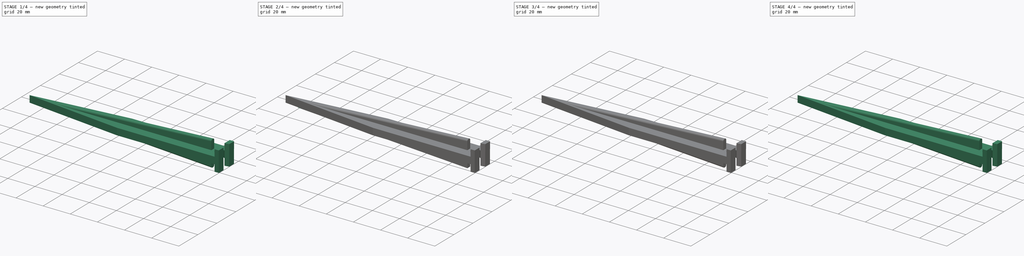
[diagram: build sequence overview — one tinted view per stage of 4, left to right]
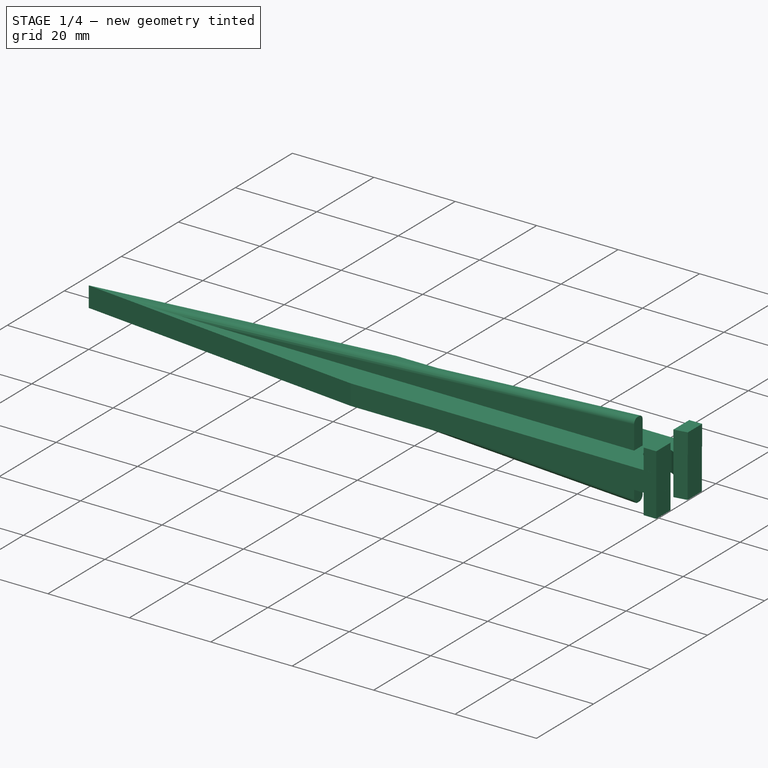
[diagram: stage 1 of 4 — iso view after this stage's code; geometry added in this stage tinted green]
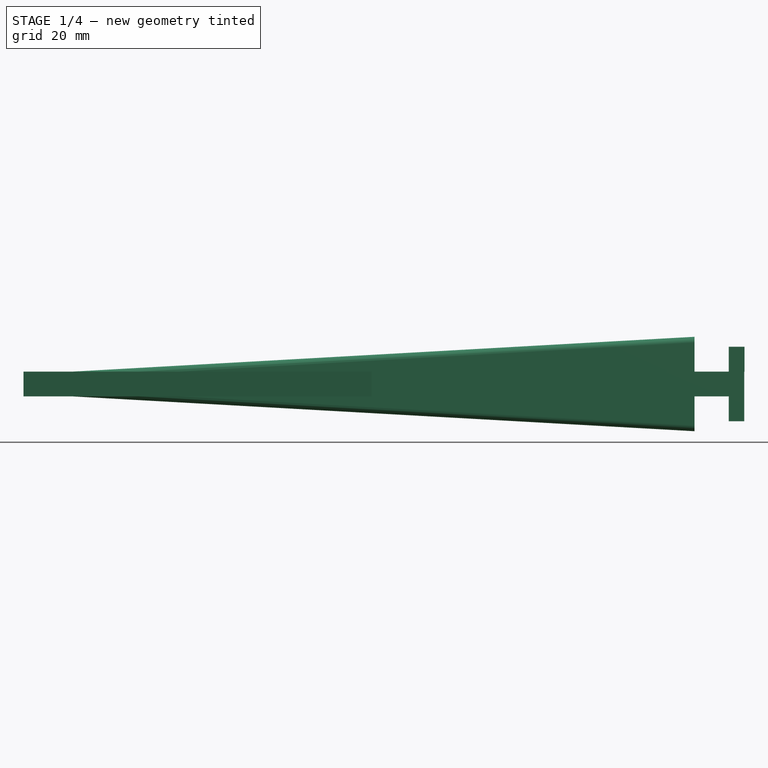
[diagram: stage 1 of 4 — front view after this stage's code; geometry added in this stage tinted green]
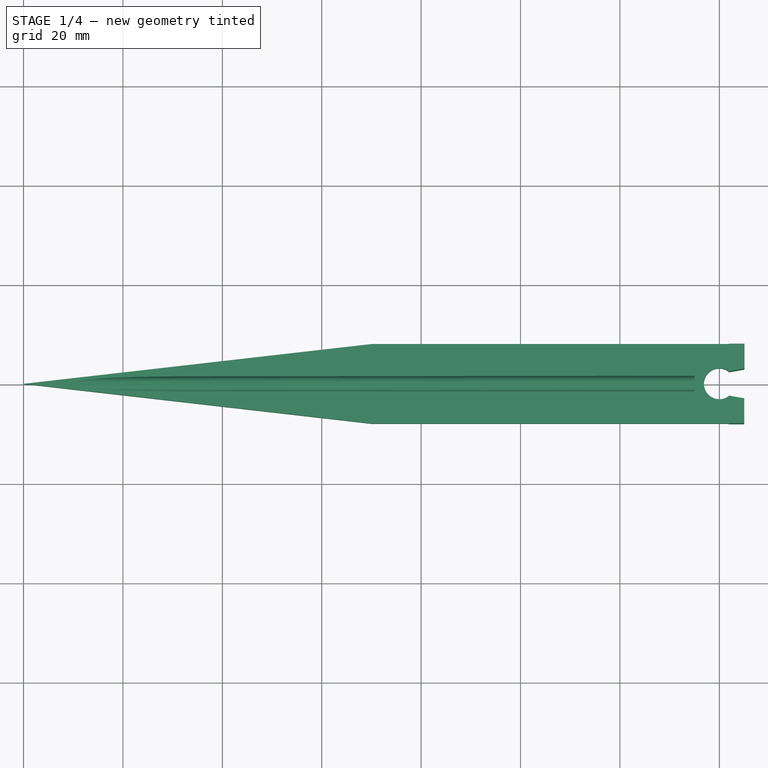
[diagram: stage 1 of 4 — top view after this stage's code; geometry added in this stage tinted green]
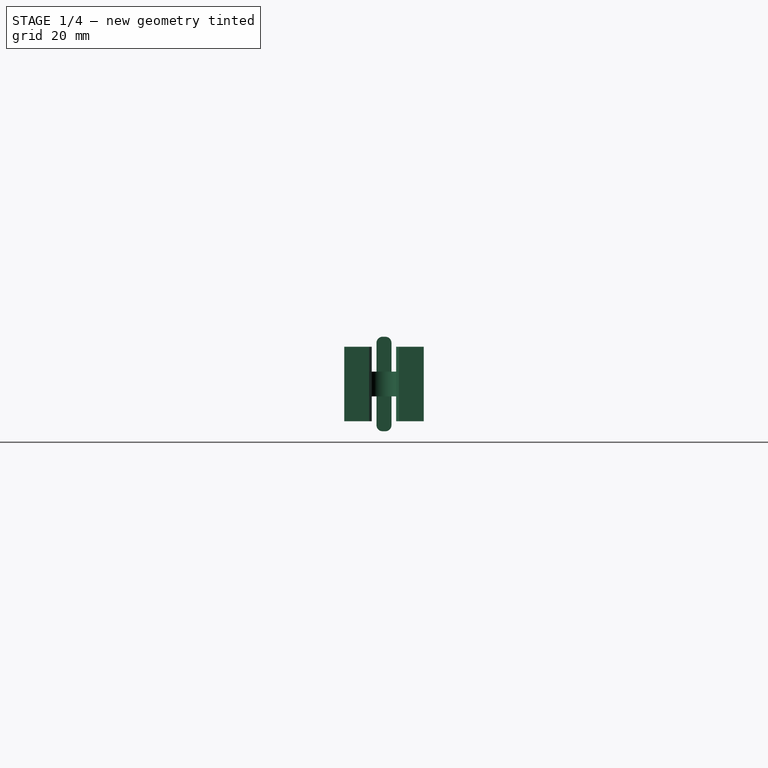
[diagram: stage 1 of 4 — right view after this stage's code; geometry added in this stage tinted green]
FCSTD DOCUMENT  (FreeCAD 1.0R38641 +468 (Git))
Label: holder
License: All rights reserved
LicenseURL: https://en.wikipedia.org/wiki/All_rights_reserved
objects: Sketcher::SketchObject×5, PartDesign::Pad×5, PartDesign::Body×5, PartDesign::Boolean×3, PartDesign::Fillet×2
note: 42 computed .brp shape members not serialized (recipe doc carries the construction recipe); baked Part::Feature solids carry a one-line shape summary decoded from their .brp

FEATURE [PartDesign::Body] Body006
  AllowCompound = false
  Group = -> [Boolean001]
  Origin = -> Origin006
  Tip = -> Boolean001
FEATURE [Sketcher::SketchObject] Sketch002
  ArcFitTolerance = 1e-06
  AttachmentSupport = -> [Boolean]
  FullyConstrained = true
  MakeInternals = false
  MapMode = 5
  Placement = pos=(0,0,0) rot=(1,0,0;3.14159rad)
  sketch-geometry (8):
    g0: LineSegment StartX=5.00214 StartY=7.99699 StartZ=0 EndX=5.00214 EndY=2.99699 EndZ=0
    g1: LineSegment StartX=5.00214 StartY=2.99699 StartZ=0 EndX=1.9 EndY=2.45 EndZ=0
    g2: LineSegment StartX=1.9 StartY=2.45 StartZ=0 EndX=1.9 EndY=7.99699 EndZ=0
    g3: LineSegment StartX=1.9 StartY=7.99699 StartZ=0 EndX=5.00214 EndY=7.99699 EndZ=0
    g4: LineSegment StartX=1.9 StartY=-2.45 StartZ=0 EndX=1.9 EndY=-7.99819 EndZ=0
    g5: LineSegment StartX=1.9 StartY=-7.99819 StartZ=0 EndX=5 EndY=-7.99819 EndZ=0
    g6: LineSegment StartX=5 StartY=-7.99819 StartZ=0 EndX=5.00193 EndY=-2.99819 EndZ=0
    g7: LineSegment StartX=5.00193 StartY=-2.99819 StartZ=0 EndX=1.9 EndY=-2.45 EndZ=0
  constraints (24):
    c: Vertical(g0)
    c: Coincident(g1,g0)
    c: Coincident(g2,g1)
    c: Vertical(g2)
    c: Coincident(g3,g2)
    c: Coincident(g3,g0)
    c: Horizontal(g3)
    c: Vertical(g4)
    c: Coincident(g5,g4)
    c: Horizontal(g5)
    c: Coincident(g6,g5)
    c: Coincident(g7,g6)
    c: Coincident(g7,g4)
    c: Angle(g0,g1) = 1.74533
    c: DistanceY(g0,g0) = 5
    c: Angle(g7,g6) = 1.74533
    c: DistanceY(g5,g6) = 5
    c: Distance(g4,g6) = 3.15
    c: DistanceX(g-1,g4) = 1.9
    c: DistanceY(g4,g-1) = 2.45
    c: DistanceX(g5,g5) = 3.1
    c: DistanceX(g-1,g1) = 1.9
    c: Distance(g1,g0) = 3.15
    c: DistanceY(g-1,g1) = 2.45
FEATURE [PartDesign::Pad] Pad003
  Direction = (0,0,-1)
  Length = 5
  Length2 = 10
  Profile = -> Sketch002
  ReferenceAxis = -> Sketch002 [N_Axis]
  Refine = true
  Suppressed = false
  Type = 0
FEATURE [Sketcher::SketchObject] Sketch003
  ArcFitTolerance = 1e-06
  AttachmentSupport = -> [Pad003]
  FullyConstrained = true
  MakeInternals = false
  MapMode = 5
  Placement = pos=(0,0,5) rot=(0,0,1;0rad)
  sketch-geometry (8):
    g0: LineSegment StartX=5.05 StartY=8.00543 StartZ=0 EndX=1.9 EndY=8.00543 EndZ=0
    g1: LineSegment StartX=1.9 StartY=8.00543 StartZ=0 EndX=1.9 EndY=2.45 EndZ=0
    g2: LineSegment StartX=1.9 StartY=2.45 StartZ=0 EndX=5.05 EndY=3.00543 EndZ=0
    g3: LineSegment StartX=5.05 StartY=3.00543 StartZ=0 EndX=5.05 EndY=8.00543 EndZ=0
    g4: LineSegment StartX=5.00214 StartY=-2.99699 StartZ=0 EndX=5.00214 EndY=-7.99699 EndZ=0
    g5: LineSegment StartX=5.00214 StartY=-7.99699 StartZ=0 EndX=1.9 EndY=-7.99699 EndZ=0
    g6: LineSegment StartX=1.9 StartY=-7.99699 StartZ=0 EndX=1.9 EndY=-2.45 EndZ=0
    g7: LineSegment StartX=1.9 StartY=-2.45 StartZ=0 EndX=5.00214 EndY=-2.99699 EndZ=0
  constraints (24):
    c: Horizontal(g0)
    c: Coincident(g1,g0)
    c: Vertical(g1)
    c: Coincident(g2,g1)
    c: Coincident(g3,g2)
    c: Coincident(g3,g0)
    c: Vertical(g3)
    c: Vertical(g4)
    c: Coincident(g5,g4)
    c: Horizontal(g5)
    c: Coincident(g6,g5)
    c: Vertical(g6)
    c: Coincident(g7,g6)
    c: Coincident(g7,g4)
    c: DistanceX(g1,g2) = 3.15
    c: Distance(g6,g4) = 3.15
    c: DistanceY(g2,g0) = 5
    c: DistanceY(g4,g4) = 5
    c: Angle(g7,g4) = 1.74533
    c: Angle(g3,g2) = 1.74533
    c: DistanceY(g-1,g1) = 2.45
    c: DistanceY(g6,g-1) = 2.45
    c: DistanceX(g-1,g1) = 1.9
    c: DistanceX(g-1,g6) = 1.9
FEATURE [PartDesign::Pad] Pad004
  BaseFeature = -> Pad003
  Direction = (0,0,1)
  Length = 5
  Length2 = 10
  Profile = -> Sketch003
  ReferenceAxis = -> Sketch003 [N_Axis]
  Refine = true
  Suppressed = false
  Type = 0
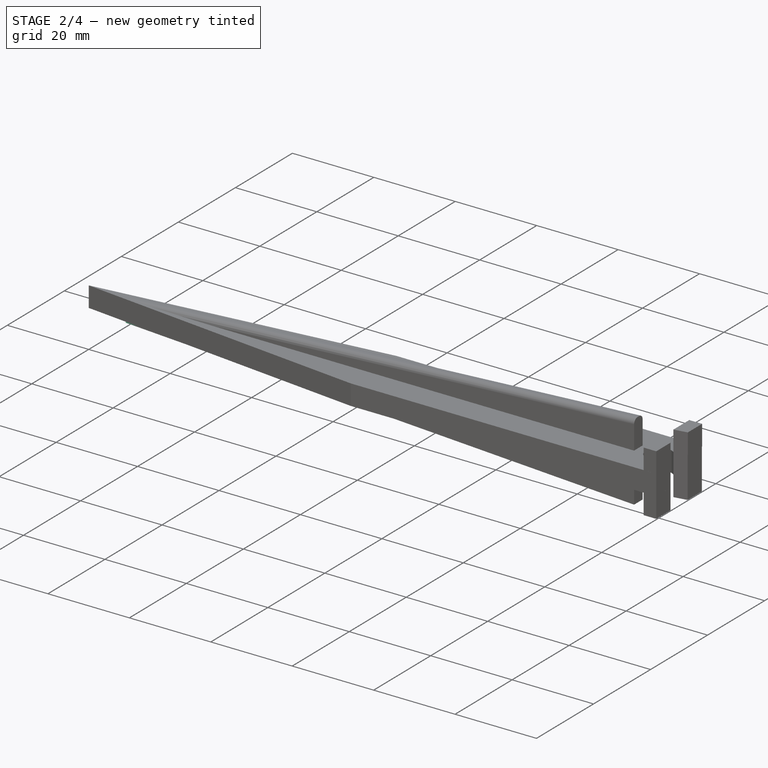
[diagram: stage 2 of 4 — iso view after this stage's code; geometry added in this stage tinted green]
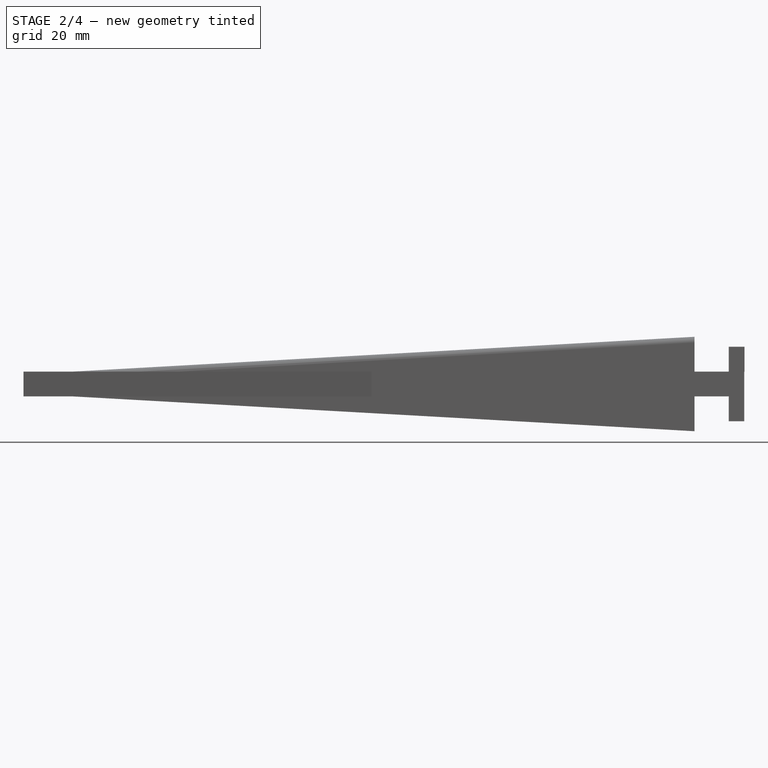
[diagram: stage 2 of 4 — front view after this stage's code; geometry added in this stage tinted green]
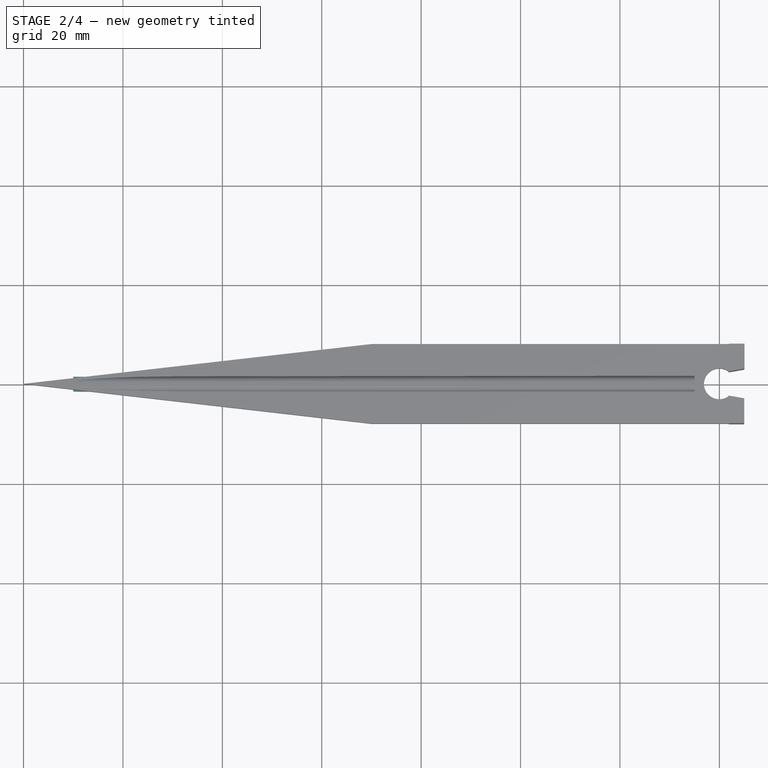
[diagram: stage 2 of 4 — top view after this stage's code; geometry added in this stage tinted green]
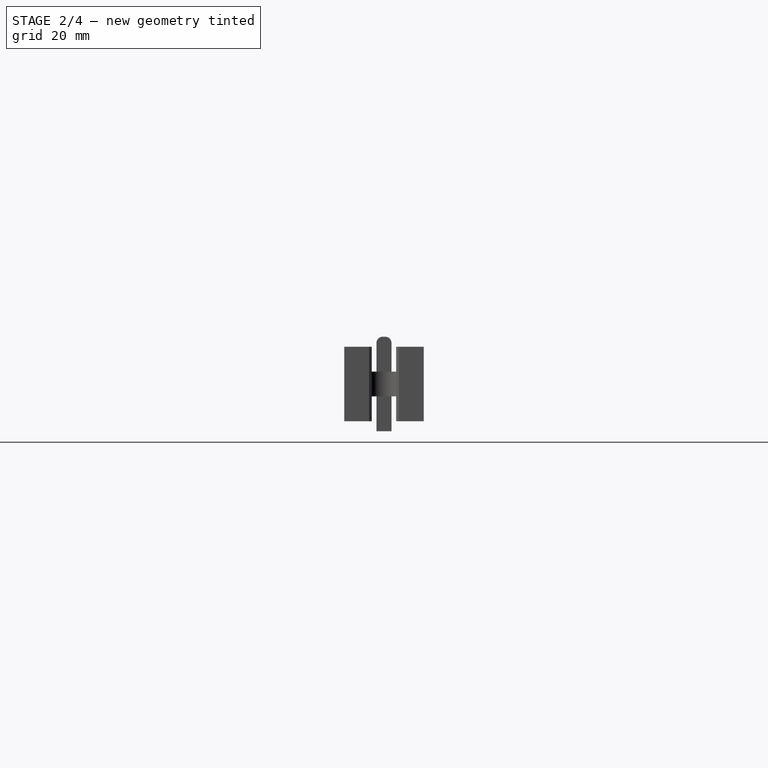
[diagram: stage 2 of 4 — right view after this stage's code; geometry added in this stage tinted green]
FEATURE [PartDesign::Body] Body
  AllowCompound = false
  Group = -> [Sketch,Pad]
  Origin = -> Origin
  Tip = -> Pad
FEATURE [Sketcher::SketchObject] Sketch001
  ArcFitTolerance = 0
  AttachmentSupport = -> [XZ_Plane001]
  FullyConstrained = true
  MakeInternals = false
  MapMode = 5
  Placement = pos=(0,0,0) rot=(1,0,0;1.5708rad)
  sketch-geometry (3):
    g0: LineSegment StartX=-130 StartY=5 StartZ=0 EndX=-5 EndY=5 EndZ=0
    g1: LineSegment StartX=-5 StartY=12 StartZ=0 EndX=-5 EndY=5 EndZ=0
    g2: LineSegment StartX=-5 StartY=12 StartZ=0 EndX=-130 EndY=5 EndZ=0
  constraints (9):
    c: Coincident(g1,g0)
    c: Coincident(g2,g1)
    c: Coincident(g0,g2)
    c: Horizontal(g0)
    c: DistanceY(g-1,g0) = 5
    c: DistanceX(g0,g-1) = 5
    c: Vertical(g1)
    c: DistanceY(g1,g1) = 7
    c: DistanceX(g0,g-1) = 130
FEATURE [PartDesign::Pad] Pad001
  Direction = (0,-1,2e-16)
  Length = 3
  Length2 = 10
  Midplane = true
  Placement = pos=(0,0,0) rot=(1,0,0;1.5708rad)
  Profile = -> Sketch001
  ReferenceAxis = -> Sketch001 [N_Axis]
  Suppressed = false
  Type = 0
FEATURE [Sketcher::SketchObject] MirroredSketch
  ArcFitTolerance = 0
  FullyConstrained = true
  MakeInternals = false
  Placement = pos=(0,0,0) rot=(1,0,0;1.5708rad)
  sketch-geometry (3):
    g0: LineSegment StartX=-130 StartY=0 StartZ=0 EndX=-5 EndY=0 EndZ=0
    g1: LineSegment StartX=-5 StartY=-7 StartZ=0 EndX=-5 EndY=0 EndZ=0
    g2: LineSegment StartX=-5 StartY=-7 StartZ=0 EndX=-130 EndY=0 EndZ=0
  constraints (9):
    c: Coincident(g1,g0)
    c: Coincident(g2,g1)
    c: Coincident(g0,g2)
    c: Horizontal(g0)
    c: Vertical(g1)
    c: DistanceX(g0,g-1) = 5
    c: PointOnObject(g0,g-1)
    c: DistanceY(g1,g1) = 7
    c: DistanceX(g0,g-1) = 130
FEATURE [PartDesign::Pad] Pad002
  Direction = (0,-1,2e-16)
  Length = 3
  Length2 = 10
  Midplane = true
  Placement = pos=(0,0,0) rot=(1,0,0;1.5708rad)
  Profile = -> MirroredSketch
  ReferenceAxis = -> MirroredSketch [N_Axis]
  Suppressed = false
  Type = 0
FEATURE [PartDesign::Body] Body002
  AllowCompound = false
  Group = -> [MirroredSketch,Pad002,Fillet]
  Origin = -> Origin002
  Tip = -> Fillet
FEATURE [PartDesign::Fillet] Fillet001
  Base = -> Pad001 [Edge9,Edge8]
  BaseFeature = -> Pad001
  Placement = pos=(0,0,0) rot=(1,0,0;1.5708rad)
  Radius = 1.2
  SupportTransform = false
  Suppressed = false
  UseAllEdges = false
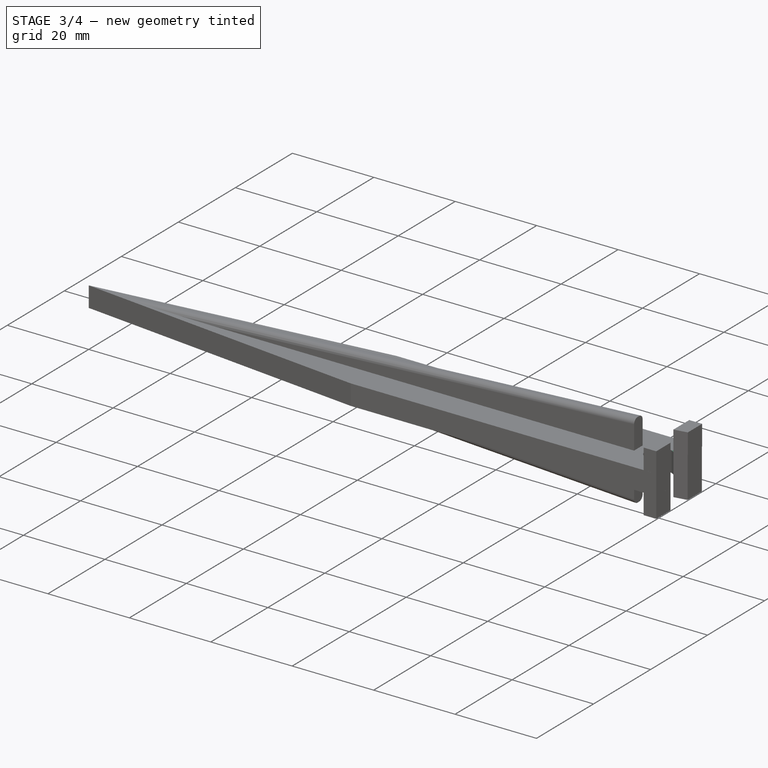
[diagram: stage 3 of 4 — iso view after this stage's code; geometry added in this stage tinted green]
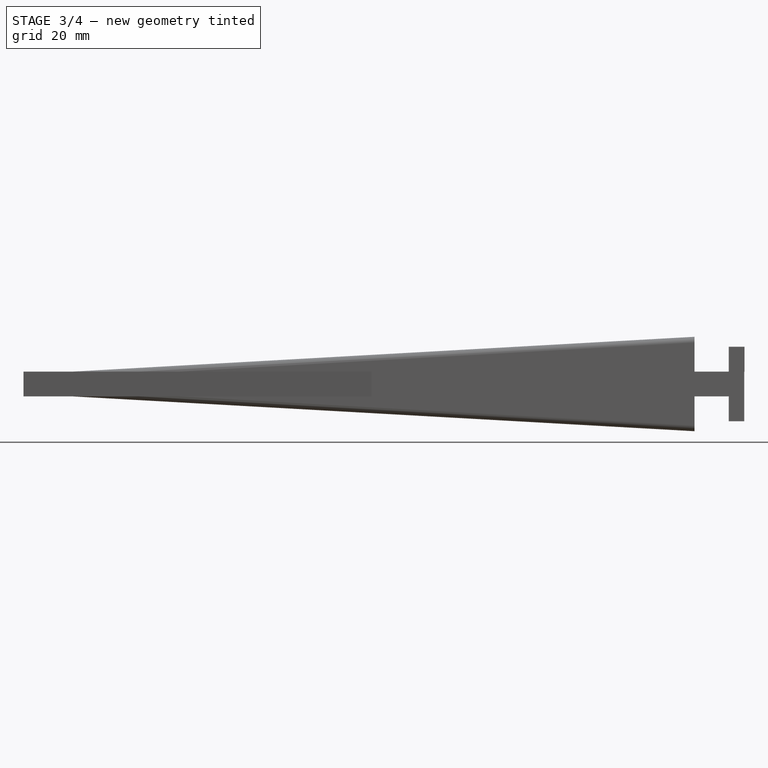
[diagram: stage 3 of 4 — front view after this stage's code; geometry added in this stage tinted green]
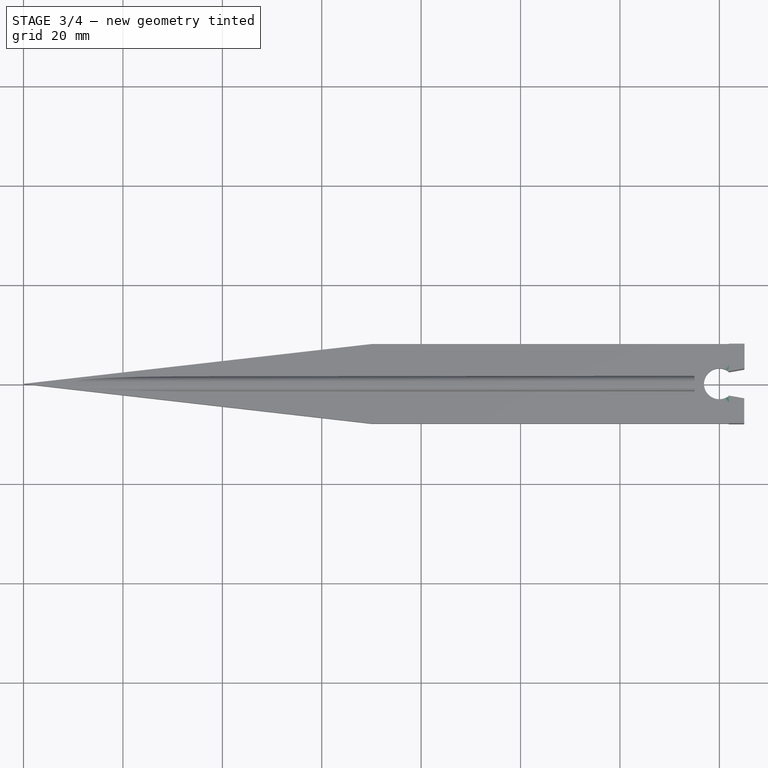
[diagram: stage 3 of 4 — top view after this stage's code; geometry added in this stage tinted green]
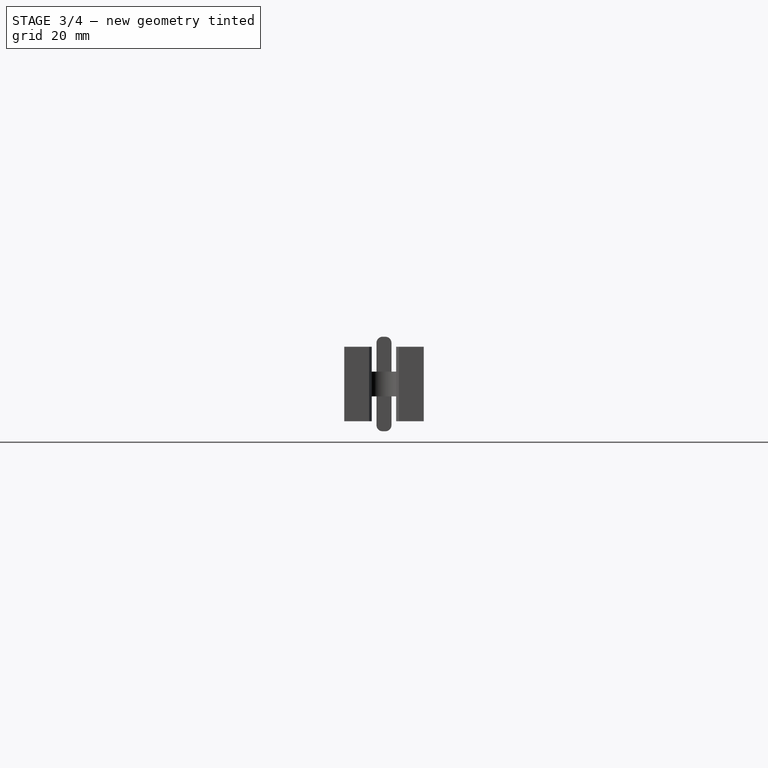
[diagram: stage 3 of 4 — right view after this stage's code; geometry added in this stage tinted green]
FEATURE [Sketcher::SketchObject] Sketch
  ArcFitTolerance = 0
  AttachmentSupport = -> [XY_Plane]
  FullyConstrained = true
  MakeInternals = false
  MapMode = 5
  sketch-geometry (11):
    g0: LineSegment StartX=0 StartY=-8 StartZ=0 EndX=-70 EndY=-8 EndZ=0
    g1: LineSegment StartX=-70 StartY=-8 StartZ=0 EndX=-140 EndY=0 EndZ=0
    g2: LineSegment StartX=-140 StartY=0 StartZ=0 EndX=-70 EndY=8 EndZ=0
    g3: LineSegment StartX=-70 StartY=8 StartZ=0 EndX=0 EndY=8 EndZ=0
    g4: ArcOfCircle CenterX=0 CenterY=0 CenterZ=0 NormalX=0 NormalY=0 NormalZ=1 AngleXU=0 Radius=3.1 StartAngle=0.912739 EndAngle=5.37045
    g5: LineSegment StartX=0 StartY=8 StartZ=0 EndX=5 EndY=8 EndZ=0
    g6: LineSegment StartX=5 StartY=8 StartZ=0 EndX=5 EndY=3 EndZ=0
    g7: LineSegment StartX=5 StartY=3 StartZ=0 EndX=1.8959 EndY=2.45266 EndZ=0
    g8: LineSegment StartX=1.8959 StartY=-2.45266 StartZ=0 EndX=5 EndY=-3 EndZ=0
    g9: LineSegment StartX=5 StartY=-3 StartZ=0 EndX=5 EndY=-8 EndZ=0
    g10: LineSegment StartX=5 StartY=-8 StartZ=0 EndX=0 EndY=-8 EndZ=0
  constraints (33):
    c: PointOnObject(g2,g-1)
    c: PointOnObject(g3,g-2)
    c: PointOnObject(g0,g-2)
    c: DistanceY(g-1,g3) = 8
    c: Coincident(g2,g1)
    c: Coincident(g0,g1)
    c: Horizontal(g0)
    c: Coincident(g2,g3)
    c: Horizontal(g3)
    c: Coincident(g4,g-1)
    c: Radius(g4) = 3.1
    c: Equal(g3,g0)
    c: Coincident(g5,g3)
    c: Horizontal(g5)
    c: Coincident(g6,g5)
    c: Vertical(g6)
    c: Coincident(g7,g6)
    c: Coincident(g9,g8)
    c: Coincident(g10,g9)
    c: Coincident(g10,g0)
    c: Horizontal(g10)
    c: DistanceX(g5,g5) = 5
    c: DistanceY(g6,g6) = 5
    c: Vertical(g9)
    c: DistanceY(g9,g9) = 5
    c: Coincident(g4,g8)
    c: Coincident(g4,g7)
    c: DistanceX(g10,g10) = 5
    c: DistanceX(g3,g3) = 70
    c: DistanceX(g1,g2) = 70
    c: DistanceY(g9,g-1) = 8
    c: Angle(g6,g7) = 1.74533
    c: Angle(g8,g9) = 1.74533
FEATURE [PartDesign::Pad] Pad
  AlongSketchNormal = false
  Direction = (0,0,1)
  Length = 5
  Length2 = 1
  Offset = 1
  Profile = -> Sketch
  ReferenceAxis = -> Sketch [N_Axis]
  Suppressed = false
  Type = 0
FEATURE [PartDesign::Fillet] Fillet
  Base = -> Pad002 [Edge8,Edge9]
  BaseFeature = -> Pad002
  Placement = pos=(0,0,0) rot=(1,0,0;1.5708rad)
  Radius = 1.2
  SupportTransform = false
  Suppressed = false
  UseAllEdges = false
FEATURE [PartDesign::Boolean] Boolean
  BaseFeature = -> Fillet001
  Group = -> [Body,Body002]
  Suppressed = false
  Type = 0
  UsePlacement = false
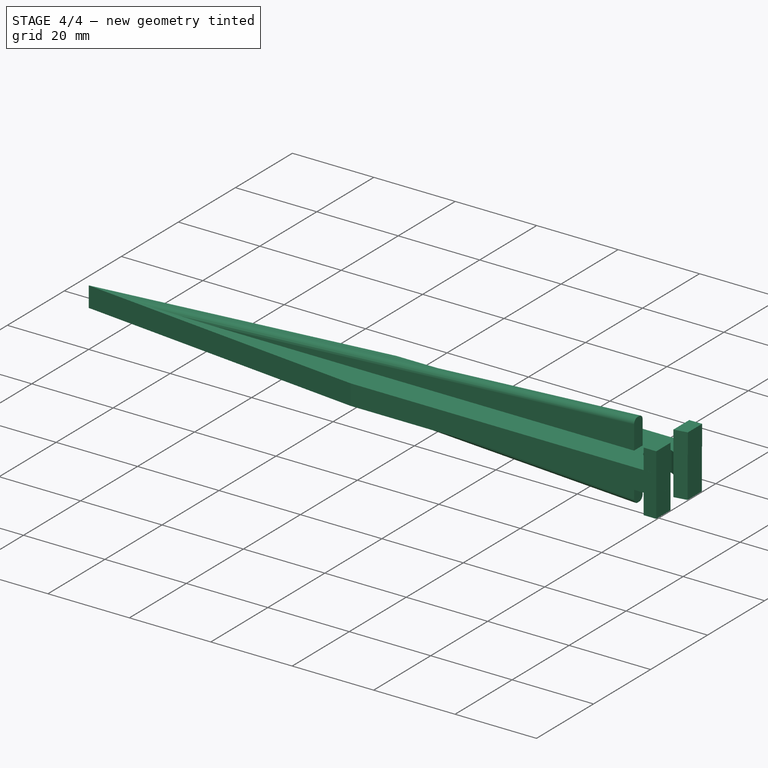
[diagram: stage 4 of 4 — iso view after this stage's code; geometry added in this stage tinted green]
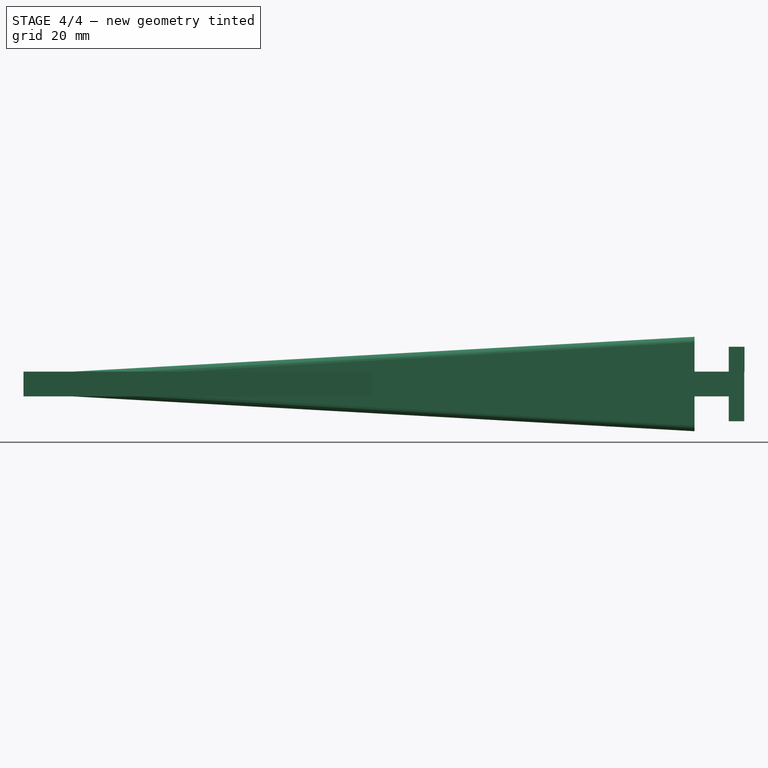
[diagram: stage 4 of 4 — front view after this stage's code; geometry added in this stage tinted green]
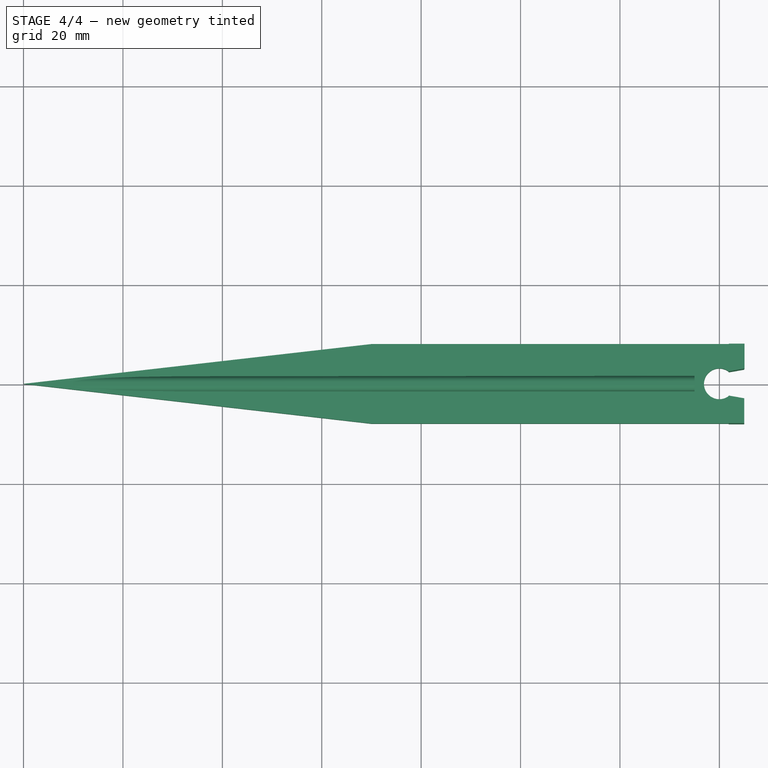
[diagram: stage 4 of 4 — top view after this stage's code; geometry added in this stage tinted green]
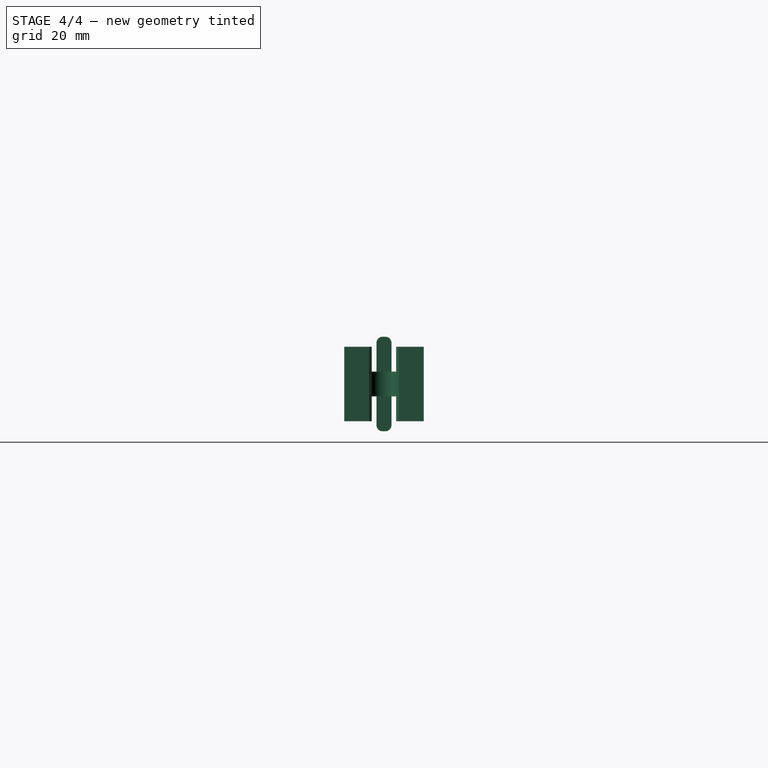
[diagram: stage 4 of 4 — right view after this stage's code; geometry added in this stage tinted green]
FEATURE [PartDesign::Body] Body001
  AllowCompound = false
  Group = -> [Sketch001,Pad001,Fillet001,Boolean]
  Origin = -> Origin001
  Tip = -> Boolean
FEATURE [PartDesign::Boolean] Boolean001
  Group = -> [Body001]
  Suppressed = false
  Type = 0
  UsePlacement = false
FEATURE [PartDesign::Boolean] Boolean002
  BaseFeature = -> Pad004
  Group = -> [Body006]
  Refine = true
  Suppressed = false
  Type = 0
  UsePlacement = true
FEATURE [PartDesign::Body] Body007
  AllowCompound = false
  Group = -> [Sketch002,Pad003,Sketch003,Pad004,Boolean002]
  Origin = -> Origin007
  Tip = -> Boolean002
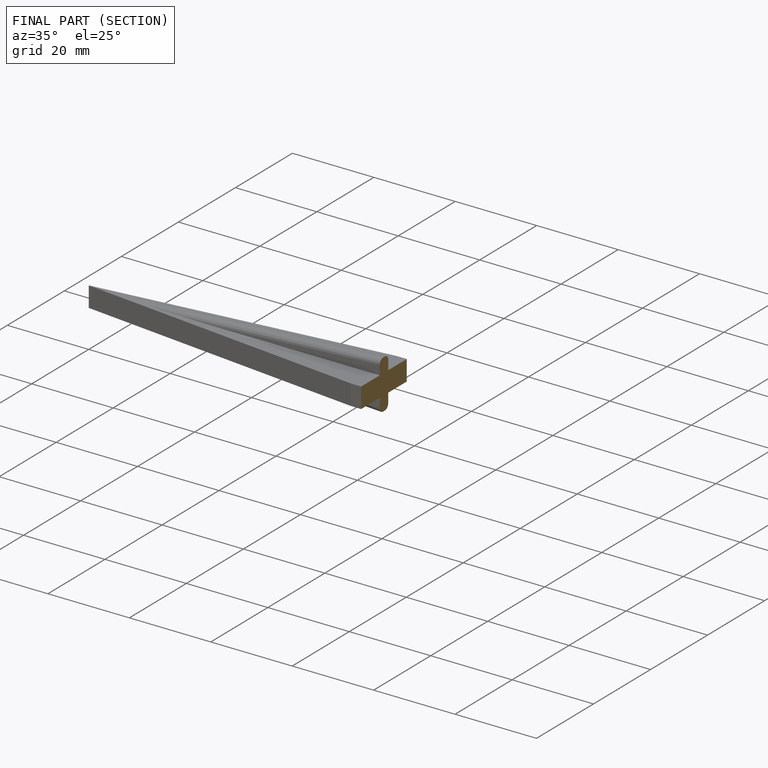
[diagram: finished part — half-section view (interior)]
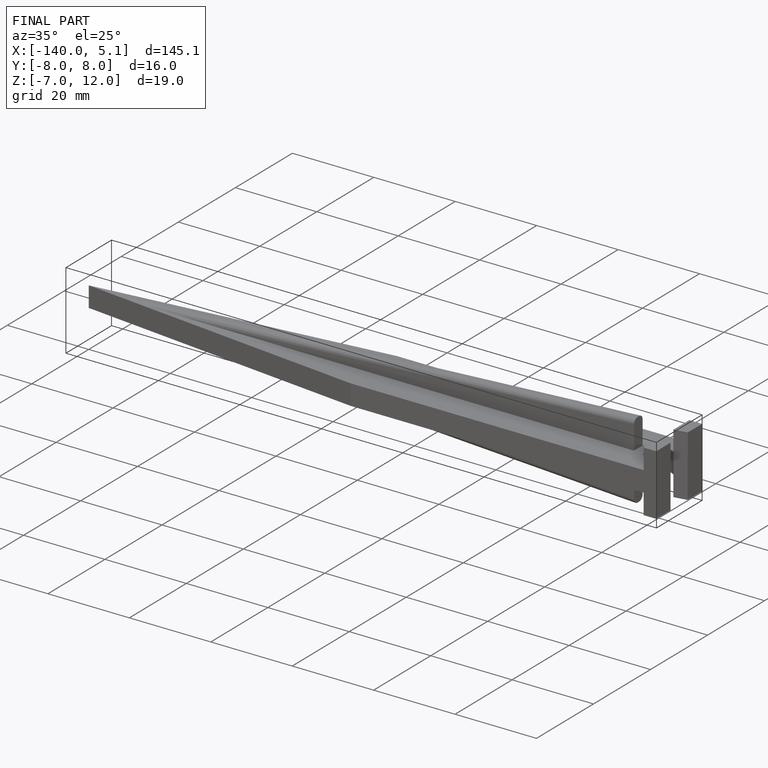
[diagram: finished part — iso view with bounding-box wireframe]
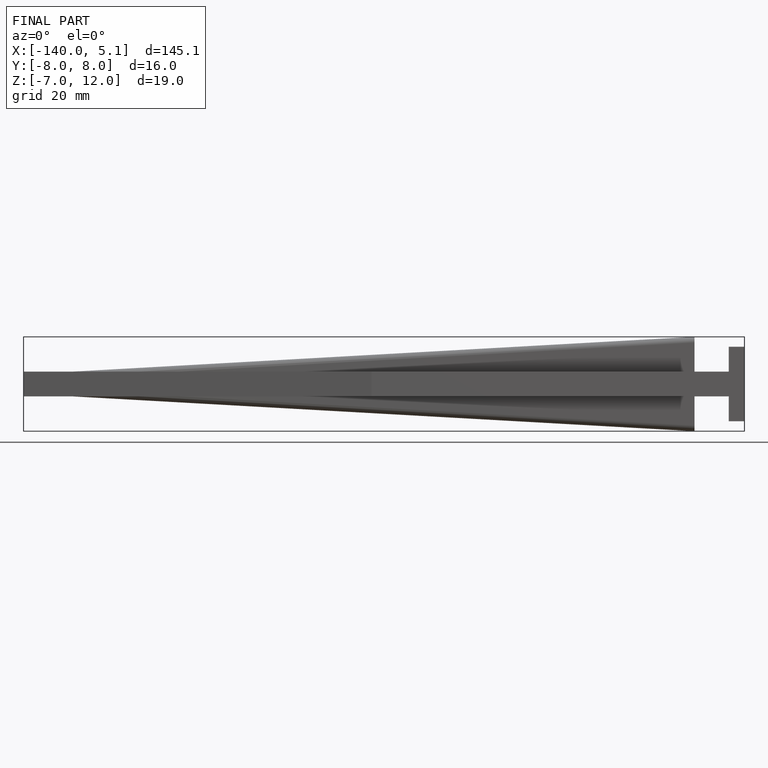
[diagram: finished part — front view with bounding-box wireframe]
